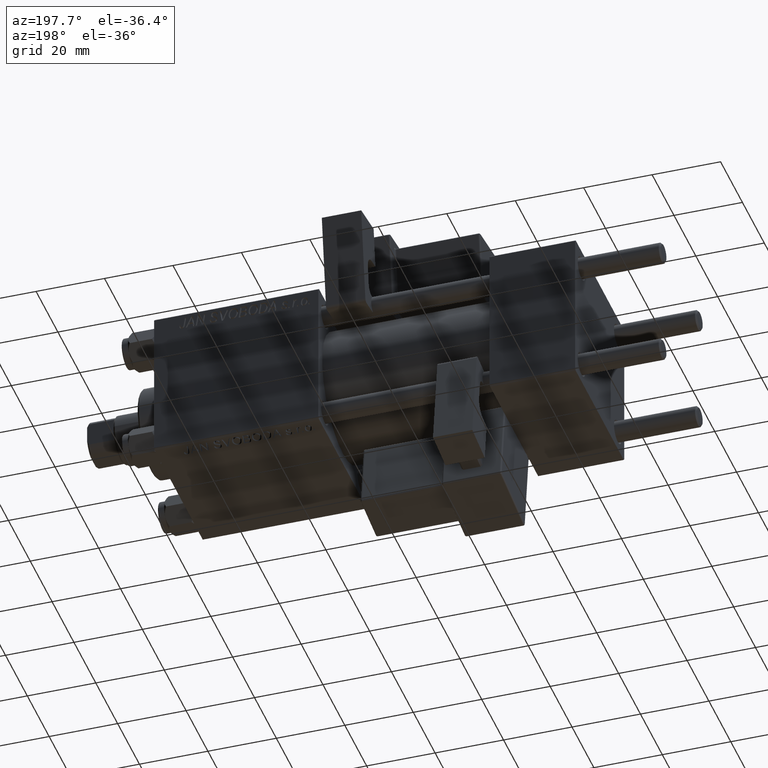
[diagram: clean part render]
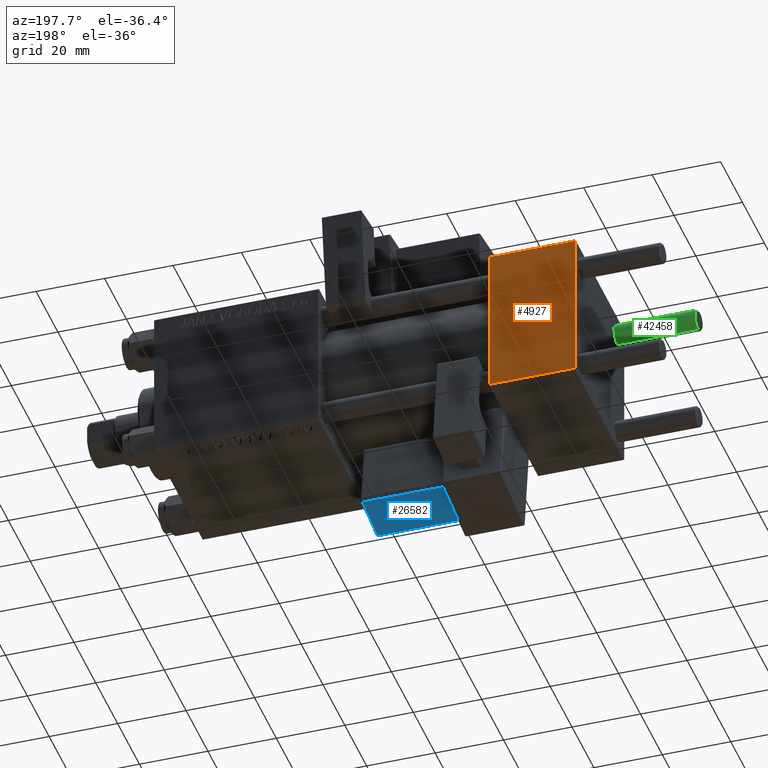
[diagram: same view with three faces highlighted in distinct colors, each labeled with its STEP entity id]
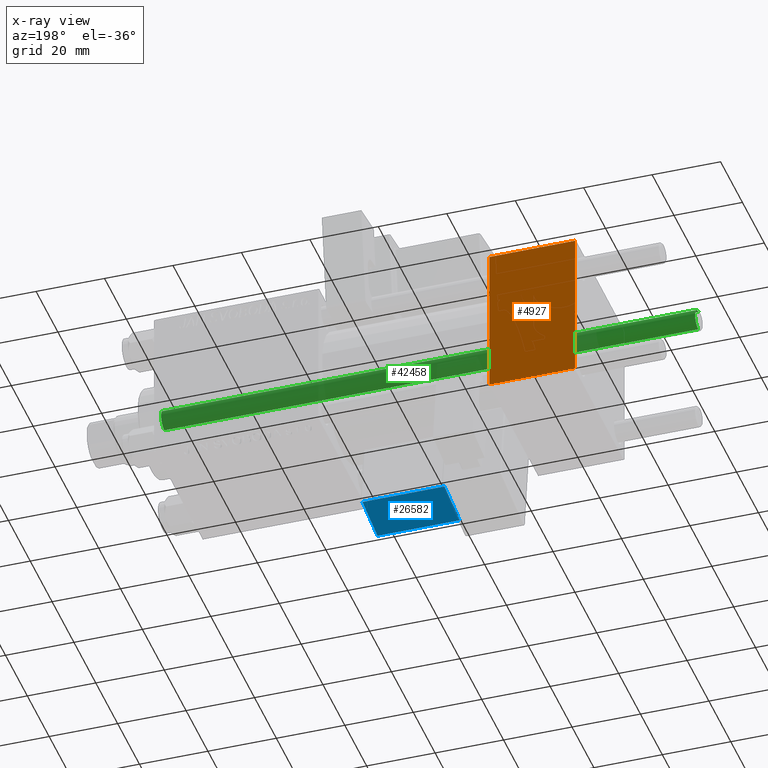
[diagram: x-ray of the same camera — body ghosted, the three highlighted faces saturated]
A machine part, auxiliary view with three faces highlighted in distinct colors.
The next image is the same camera in x-ray (body ghosted, the three faces saturated) — at least one of them is partly hidden behind the body in this view.
Their STEP definitions:

[orange] entity #4927 — the highlighted planar face has unit normal (0, 1, 0).
#692 = CARTESIAN_POINT ( 'NONE',  ( 0.000000000000000000, 22.50000000000000000, 22.50000000000000355 ) ) ;
#2005 = CARTESIAN_POINT ( 'NONE',  ( 25.00000000000000000, 22.50000000000000000, 21.99999999999999645 ) ) ;
#4126 = ORIENTED_EDGE ( 'NONE', *, *, #4463, .T. ) ;
#4463 = EDGE_CURVE ( 'NONE', #24904, #35252, #30586, .T. ) ;
#4927 = ADVANCED_FACE ( 'NONE', ( #25644 ), #13463, .T. ) ;
#6999 = ORIENTED_EDGE ( 'NONE', *, *, #7015, .F. ) ;
#7015 = EDGE_CURVE ( 'NONE', #24904, #10940, #41168, .T. ) ;
#9441 = DIRECTION ( 'NONE',  ( 1.000000000000000000, 0.000000000000000000, 0.000000000000000000 ) ) ;
#9506 = DIRECTION ( 'NONE',  ( 0.000000000000000000, -0.000000000000000000, 1.000000000000000000 ) ) ;
#10940 = VERTEX_POINT ( 'NONE', #20254 ) ;
#11146 = VECTOR ( 'NONE', #39621, 1000.000000000000000 ) ;
#13377 = EDGE_LOOP ( 'NONE', ( #16418, #50176, #6999, #4126 ) ) ;
#13463 = PLANE ( 'NONE',  #49185 ) ;
#13765 = VECTOR ( 'NONE', #45654, 1000.000000000000000 ) ;
#13855 = CARTESIAN_POINT ( 'NONE',  ( 25.00000000000000000, 22.50000000000000000, -21.99999999999996803 ) ) ;
#14707 = CARTESIAN_POINT ( 'NONE',  ( 25.00000000000000000, 22.50000000000000000, -21.99999999999998224 ) ) ;
#16418 = ORIENTED_EDGE ( 'NONE', *, *, #23509, .T. ) ;
#16484 = VERTEX_POINT ( 'NONE', #13855 ) ;
#18169 = DIRECTION ( 'NONE',  ( -1.000000000000000000, 0.000000000000000000, 0.000000000000000000 ) ) ;
#20254 = CARTESIAN_POINT ( 'NONE',  ( 0.000000000000000000, 22.50000000000000000, -21.99999999999996803 ) ) ;
#20678 = CARTESIAN_POINT ( 'NONE',  ( 25.00000000000000000, 22.50000000000000000, 22.50000000000000355 ) ) ;
#23509 = EDGE_CURVE ( 'NONE', #35252, #16484, #35658, .T. ) ;
#24904 = VERTEX_POINT ( 'NONE', #33902 ) ;
#25644 = FACE_OUTER_BOUND ( 'NONE', #13377, .T. ) ;
#30586 = LINE ( 'NONE', #2005, #33154 ) ;
#32816 = CARTESIAN_POINT ( 'NONE',  ( 25.00000000000000000, 22.50000000000000000, 21.99999999999999645 ) ) ;
#33154 = VECTOR ( 'NONE', #9441, 1000.000000000000000 ) ;
#33902 = CARTESIAN_POINT ( 'NONE',  ( 0.000000000000000000, 22.50000000000000000, 21.99999999999999645 ) ) ;
#35252 = VERTEX_POINT ( 'NONE', #32816 ) ;
#35658 = LINE ( 'NONE', #39368, #11146 ) ;
#35699 = EDGE_CURVE ( 'NONE', #16484, #10940, #50945, .T. ) ;
#39368 = CARTESIAN_POINT ( 'NONE',  ( 25.00000000000000000, 22.50000000000000000, 22.50000000000000355 ) ) ;
#39621 = DIRECTION ( 'NONE',  ( 0.000000000000000000, 0.000000000000000000, -1.000000000000000000 ) ) ;
#41168 = LINE ( 'NONE', #692, #13765 ) ;
#45654 = DIRECTION ( 'NONE',  ( 0.000000000000000000, 0.000000000000000000, -1.000000000000000000 ) ) ;
#45733 = DIRECTION ( 'NONE',  ( -0.000000000000000000, 1.000000000000000000, 0.000000000000000000 ) ) ;
#49185 = AXIS2_PLACEMENT_3D ( 'NONE', #20678, #45733, #9506 ) ;
#50176 = ORIENTED_EDGE ( 'NONE', *, *, #35699, .T. ) ;
#50945 = LINE ( 'NONE', #14707, #51998 ) ;
#51998 = VECTOR ( 'NONE', #18169, 1000.000000000000000 ) ;

[blue] entity #26582 — the highlighted planar face has unit normal (-0, -0.1399, 0.9902).
#473 = FACE_OUTER_BOUND ( 'NONE', #50451, .T. ) ;
#656 = EDGE_CURVE ( 'NONE', #2894, #8433, #23419, .T. ) ;
#1146 = VECTOR ( 'NONE', #19607, 1000.000000000000000 ) ;
#1369 = VECTOR ( 'NONE', #26519, 1000.000000000000000 ) ;
#2779 = CARTESIAN_POINT ( 'NONE',  ( 33.25000000000000000, -29.75000000000000000, 2.000000000000006661 ) ) ;
#2894 = VERTEX_POINT ( 'NONE', #21458 ) ;
#4004 = LINE ( 'NONE', #43935, #1146 ) ;
#8433 = VERTEX_POINT ( 'NONE', #44145 ) ;
#9540 = AXIS2_PLACEMENT_3D ( 'NONE', #9987, #34050, #50177 ) ;
#9987 = CARTESIAN_POINT ( 'NONE',  ( 33.75000000000000000, -15.25000000000000000, 2.000000000000008438 ) ) ;
#10720 = ORIENTED_EDGE ( 'NONE', *, *, #49792, .T. ) ;
#12288 = CARTESIAN_POINT ( 'NONE',  ( 9.250000000000005329, -15.25000000000000000, 2.000000000000005329 ) ) ;
#12674 = LINE ( 'NONE', #40700, #38487 ) ;
#14586 = LINE ( 'NONE', #46593, #1369 ) ;
#15809 = ORIENTED_EDGE ( 'NONE', *, *, #45147, .T. ) ;
#19607 = DIRECTION ( 'NONE',  ( -1.000000000000000000, 0.000000000000000000, -1.334402673828313339E-16 ) ) ;
#21458 = CARTESIAN_POINT ( 'NONE',  ( 9.250000000000005329, -29.75000000000000000, 2.000000000000003553 ) ) ;
#23419 = LINE ( 'NONE', #12288, #46507 ) ;
#24888 = CARTESIAN_POINT ( 'NONE',  ( 33.25000000000000000, -15.75000000000000000, 2.000000000000008438 ) ) ;
#26519 = DIRECTION ( 'NONE',  ( 1.000000000000000000, -0.000000000000000000, 1.334402673828313339E-16 ) ) ;
#26582 = ADVANCED_FACE ( 'NONE', ( #473 ), #48874, .F. ) ;
#27525 = EDGE_CURVE ( 'NONE', #48296, #2894, #4004, .T. ) ;
#27918 = DIRECTION ( 'NONE',  ( -1.543213096464132036E-32, 1.000000000000000000, 1.156482317317871725E-16 ) ) ;
#32517 = DIRECTION ( 'NONE',  ( 5.473822126268816683E-48, -1.000000000000000000, -1.156482317317871725E-16 ) ) ;
#34050 = DIRECTION ( 'NONE',  ( -1.334402673828313339E-16, -1.156482317317871725E-16, 1.000000000000000000 ) ) ;
#36015 = VERTEX_POINT ( 'NONE', #24888 ) ;
#38487 = VECTOR ( 'NONE', #32517, 1000.000000000000000 ) ;
#40461 = ORIENTED_EDGE ( 'NONE', *, *, #656, .T. ) ;
#40700 = CARTESIAN_POINT ( 'NONE',  ( 33.25000000000000000, -30.25000000000000000, 2.000000000000006661 ) ) ;
#43935 = CARTESIAN_POINT ( 'NONE',  ( 33.75000000000000000, -29.75000000000000000, 2.000000000000006661 ) ) ;
#44145 = CARTESIAN_POINT ( 'NONE',  ( 9.250000000000005329, -15.75000000000000000, 2.000000000000004885 ) ) ;
#45147 = EDGE_CURVE ( 'NONE', #36015, #48296, #12674, .T. ) ;
#46507 = VECTOR ( 'NONE', #27918, 1000.000000000000000 ) ;
#46593 = CARTESIAN_POINT ( 'NONE',  ( 33.75000000000000000, -15.75000000000000000, 2.000000000000008438 ) ) ;
#48296 = VERTEX_POINT ( 'NONE', #2779 ) ;
#48874 = PLANE ( 'NONE',  #9540 ) ;
#49792 = EDGE_CURVE ( 'NONE', #8433, #36015, #14586, .T. ) ;
#50177 = DIRECTION ( 'NONE',  ( 1.000000000000000000, 0.000000000000000000, 1.334402673828313339E-16 ) ) ;
#50451 = EDGE_LOOP ( 'NONE', ( #15809, #51180, #40461, #10720 ) ) ;
#51180 = ORIENTED_EDGE ( 'NONE', *, *, #27525, .T. ) ;

[green] entity #42458 — the highlighted cylindrical surface (edge-blend (fillet) strip) has radius 3 mm, axis along (1, -0, 0).
#3201 = DIRECTION ( 'NONE',  ( -0.000000000000000000, -0.000000000000000000, 1.000000000000000000 ) ) ;
#5615 = DIRECTION ( 'NONE',  ( -0.000000000000000000, -0.000000000000000000, -1.000000000000000000 ) ) ;
#6274 = VERTEX_POINT ( 'NONE', #23297 ) ;
#8796 = CARTESIAN_POINT ( 'NONE',  ( -3.000000000000000444, 0.000000000000000000, 157.0000000000000000 ) ) ;
#12475 = CARTESIAN_POINT ( 'NONE',  ( -3.000000000000000444, 0.000000000000000000, 0.4999999999999726885 ) ) ;
#13268 = AXIS2_PLACEMENT_3D ( 'NONE', #17365, #25326, #49639 ) ;
#13480 = DIRECTION ( 'NONE',  ( -1.000000000000000000, 0.000000000000000000, 0.000000000000000000 ) ) ;
#13490 = EDGE_LOOP ( 'NONE', ( #41481, #29477, #25596, #25173 ) ) ;
#13512 = CARTESIAN_POINT ( 'NONE',  ( 3.000000000000000444, 3.673940397442060361E-16, 157.0000000000000000 ) ) ;
#15341 = CARTESIAN_POINT ( 'NONE',  ( 0.000000000000000000, 0.000000000000000000, 0.4999999999999726885 ) ) ;
#15495 = EDGE_CURVE ( 'NONE', #44992, #40540, #34406, .T. ) ;
#17365 = CARTESIAN_POINT ( 'NONE',  ( 0.000000000000000000, 0.000000000000000000, 156.5000000000000284 ) ) ;
#17449 = CARTESIAN_POINT ( 'NONE',  ( 0.000000000000000000, 0.000000000000000000, 157.0000000000000000 ) ) ;
#19752 = EDGE_CURVE ( 'NONE', #40540, #28292, #41318, .T. ) ;
#20853 = AXIS2_PLACEMENT_3D ( 'NONE', #15341, #3201, #28061 ) ;
#21690 = CYLINDRICAL_SURFACE ( 'NONE', #26913, 3.000000000000000444 ) ;
#22964 = CARTESIAN_POINT ( 'NONE',  ( -3.000000000000000444, 0.000000000000000000, 156.5000000000000284 ) ) ;
#23297 = CARTESIAN_POINT ( 'NONE',  ( 3.000000000000000444, 3.673940397442060361E-16, 0.4999999999999726885 ) ) ;
#25173 = ORIENTED_EDGE ( 'NONE', *, *, #39147, .T. ) ;
#25326 = DIRECTION ( 'NONE',  ( 0.000000000000000000, 0.000000000000000000, -1.000000000000000000 ) ) ;
#25404 = DIRECTION ( 'NONE',  ( -0.000000000000000000, -0.000000000000000000, -1.000000000000000000 ) ) ;
#25596 = ORIENTED_EDGE ( 'NONE', *, *, #19752, .T. ) ;
#26913 = AXIS2_PLACEMENT_3D ( 'NONE', #17449, #25404, #13480 ) ;
#28061 = DIRECTION ( 'NONE',  ( 1.000000000000000000, 0.000000000000000000, 0.000000000000000000 ) ) ;
#28292 = VERTEX_POINT ( 'NONE', #12475 ) ;
#29477 = ORIENTED_EDGE ( 'NONE', *, *, #15495, .T. ) ;
#29918 = LINE ( 'NONE', #13512, #45207 ) ;
#33362 = DIRECTION ( 'NONE',  ( -0.000000000000000000, -0.000000000000000000, -1.000000000000000000 ) ) ;
#34406 = CIRCLE ( 'NONE', #13268, 3.000000000000000444 ) ;
#34911 = CARTESIAN_POINT ( 'NONE',  ( 3.000000000000000444, 3.673940397442060361E-16, 156.5000000000000284 ) ) ;
#39147 = EDGE_CURVE ( 'NONE', #28292, #6274, #41964, .T. ) ;
#40540 = VERTEX_POINT ( 'NONE', #22964 ) ;
#41318 = LINE ( 'NONE', #8796, #46455 ) ;
#41481 = ORIENTED_EDGE ( 'NONE', *, *, #47563, .F. ) ;
#41777 = FACE_OUTER_BOUND ( 'NONE', #13490, .T. ) ;
#41964 = CIRCLE ( 'NONE', #20853, 3.000000000000000444 ) ;
#42458 = ADVANCED_FACE ( 'NONE', ( #41777 ), #21690, .T. ) ;
#44992 = VERTEX_POINT ( 'NONE', #34911 ) ;
#45207 = VECTOR ( 'NONE', #33362, 1000.000000000000000 ) ;
#46455 = VECTOR ( 'NONE', #5615, 1000.000000000000000 ) ;
#47563 = EDGE_CURVE ( 'NONE', #44992, #6274, #29918, .T. ) ;
#49639 = DIRECTION ( 'NONE',  ( 1.000000000000000000, 0.000000000000000000, 0.000000000000000000 ) ) ;